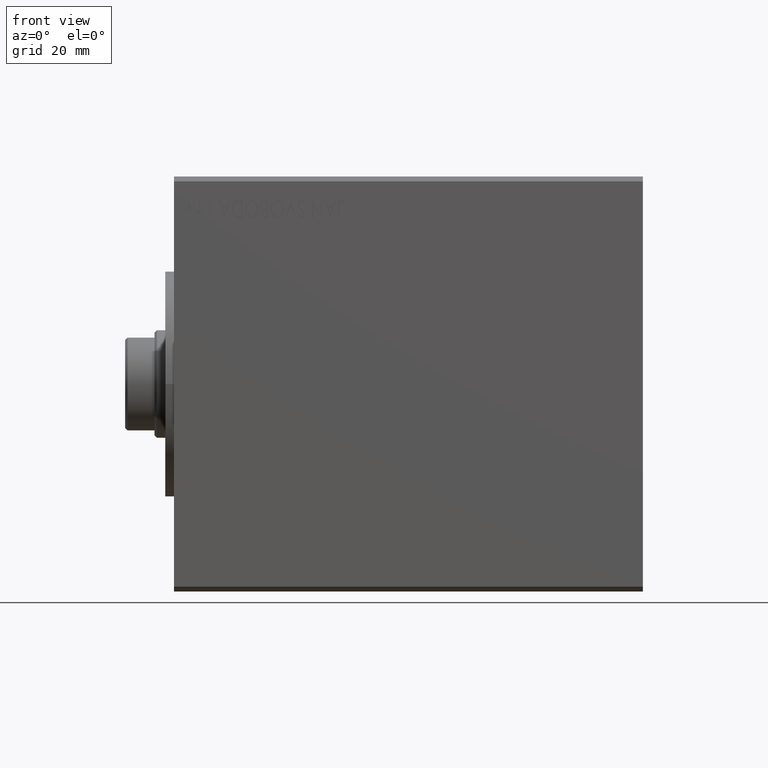
[diagram: clean part render]
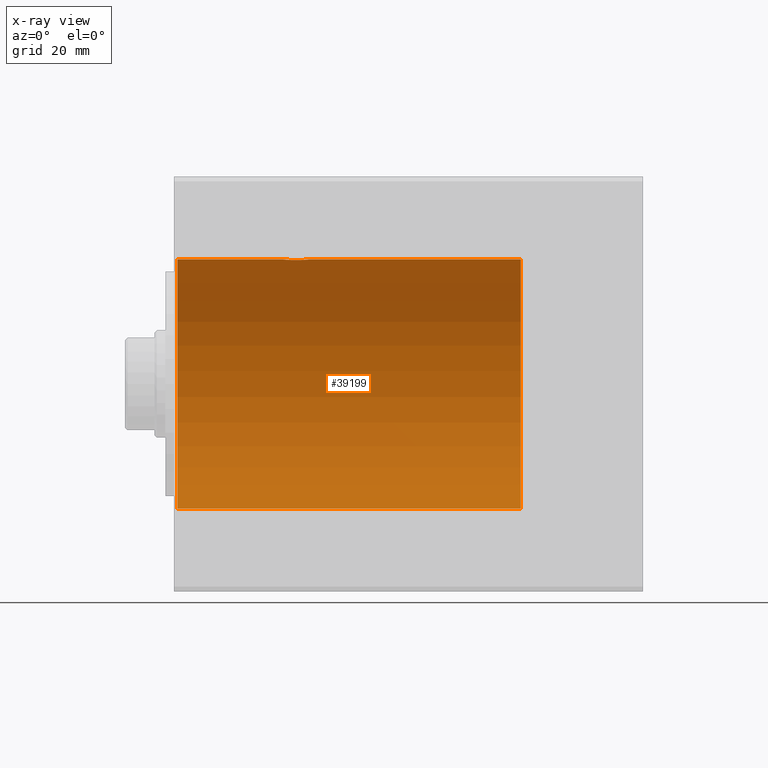
[diagram: x-ray — body ghosted, one internal face saturated and labeled with its STEP entity id]
A machine part, front view, then the same camera in x-ray: the body is ghosted and one INTERNAL B-rep face — a face not visible from any outside direction — is saturated and labeled: STEP entity #39199.
In plain terms, the highlighted cylindrical surface (partial cylindrical patch) has radius 25.5 mm, axis along (-1, -0, -0).
Its self-contained STEP definition (entity closure, byte-faithful):
#2025 = LINE ( 'NONE', #15599, #32934 ) ;
#2693 = EDGE_CURVE ( 'NONE', #31445, #7954, #7434, .T. ) ;
#2903 = CARTESIAN_POINT ( 'NONE',  ( 27.75000000000000355, 8.048106544984229456E-17, 25.50000000000000000 ) ) ;
#3223 = ORIENTED_EDGE ( 'NONE', *, *, #2693, .T. ) ;
#3994 = DIRECTION ( 'NONE',  ( -1.000000000000000000, 0.000000000000000000, 0.000000000000000000 ) ) ;
#4030 = LINE ( 'NONE', #21175, #30580 ) ;
#5899 = EDGE_CURVE ( 'NONE', #37983, #22426, #30774, .T. ) ;
#6022 = CARTESIAN_POINT ( 'NONE',  ( 24.28632799911198603, 2.661865185172593407, 25.36071218702769769 ) ) ;
#6245 = CARTESIAN_POINT ( 'NONE',  ( 25.18051211663669164, 2.749934396358983069, 25.35128913526986238 ) ) ;
#6299 = DIRECTION ( 'NONE',  ( -1.000000000000000000, 0.000000000000000000, 0.000000000000000000 ) ) ;
#6633 = EDGE_CURVE ( 'NONE', #30419, #7038, #43597, .T. ) ;
#6689 = CARTESIAN_POINT ( 'NONE',  ( 26.67899044711617762, 2.185448893543723958, 25.40637711736232518 ) ) ;
#6847 = CYLINDRICAL_SURFACE ( 'NONE', #9669, 25.50000000000000000 ) ;
#7038 = VERTEX_POINT ( 'NONE', #34174 ) ;
#7434 = B_SPLINE_CURVE_WITH_KNOTS ( 'NONE', 3,
 ( #2903, #37194, #26498, #13580, #12645, #23831, #27167, #40760, #9584, #36747, #6689, #43437, #36522, #13139, #29837, #33620, #6245, #19820, #16704, #6022, #33849, #19604, #12912, #33396, #16478, #30283, #43887, #13364, #26949, #40539, #29327, #32877, #12185, #32439 ),
 .UNSPECIFIED., .F., .F.,
 ( 4, 2, 2, 2, 2, 2, 2, 2, 2, 2, 2, 2, 2, 2, 2, 2, 4 ),
 ( 7.820387884921159682E-20, 0.0005377504153540451368, 0.001075500830708090057, 0.001613251246062135085, 0.002151001661416180114, 0.002688752076770225142, 0.003226502492124270170, 0.003764252907478314765, 0.004302003322832360227, 0.004839753738186405689, 0.005377504153540450284, 0.005915254568894494878, 0.006453004984248540341, 0.006990755399602586670, 0.007528505814956631265, 0.008066256230310677594, 0.008604006645664723923 ),
 .UNSPECIFIED. ) ;
#7954 = VERTEX_POINT ( 'NONE', #22501 ) ;
#8504 = EDGE_LOOP ( 'NONE', ( #13622, #18848, #40276, #3223, #42685, #16612 ) ) ;
#9584 = CARTESIAN_POINT ( 'NONE',  ( 27.07094674874814899, 1.818190416763847628, 25.43541506791175166 ) ) ;
#9669 = AXIS2_PLACEMENT_3D ( 'NONE', #36905, #13076, #27101 ) ;
#12031 = CARTESIAN_POINT ( 'NONE',  ( 0.7000000000000061728, 3.122849337825750222E-15, -25.50000000000000000 ) ) ;
#12185 = CARTESIAN_POINT ( 'NONE',  ( 22.25000000000001421, 0.1795439971740303842, 25.50000000000000711 ) ) ;
#12645 = CARTESIAN_POINT ( 'NONE',  ( 27.60924546800652024, 0.8870333714824095717, 25.48511214065471719 ) ) ;
#12753 = CARTESIAN_POINT ( 'NONE',  ( 71.00000000000000000, 0.000000000000000000, 0.000000000000000000 ) ) ;
#12912 = CARTESIAN_POINT ( 'NONE',  ( 23.62085709230549568, 2.385906103428721892, 25.38833271868618624 ) ) ;
#13076 = DIRECTION ( 'NONE',  ( -1.000000000000000000, -0.000000000000000000, -0.000000000000000000 ) ) ;
#13139 = CARTESIAN_POINT ( 'NONE',  ( 25.88758609357714491, 2.608978271227879731, 25.36627648877553654 ) ) ;
#13364 = CARTESIAN_POINT ( 'NONE',  ( 22.61454708910614997, 1.379923800465350681, 25.46307233195958020 ) ) ;
#13580 = CARTESIAN_POINT ( 'NONE',  ( 27.66219387477480041, 0.7122967098376464801, 25.49065645963403526 ) ) ;
#13622 = ORIENTED_EDGE ( 'NONE', *, *, #16477, .F. ) ;
#15599 = CARTESIAN_POINT ( 'NONE',  ( 71.00000000000000000, 0.000000000000000000, 25.50000000000000000 ) ) ;
#15768 = AXIS2_PLACEMENT_3D ( 'NONE', #12753, #6299, #43719 ) ;
#15835 = AXIS2_PLACEMENT_3D ( 'NONE', #23601, #3994, #16697 ) ;
#16477 = EDGE_CURVE ( 'NONE', #7038, #22426, #4030, .T. ) ;
#16478 = CARTESIAN_POINT ( 'NONE',  ( 23.18411208796796785, 2.073163292536371660, 25.41591161430256918 ) ) ;
#16612 = ORIENTED_EDGE ( 'NONE', *, *, #5899, .T. ) ;
#16618 = CARTESIAN_POINT ( 'NONE',  ( 71.00000000000000000, 0.000000000000000000, 25.50000000000000000 ) ) ;
#16697 = DIRECTION ( 'NONE',  ( 0.000000000000000000, 0.000000000000000000, -1.000000000000000000 ) ) ;
#16704 = CARTESIAN_POINT ( 'NONE',  ( 24.63913991527716263, 2.732148236853054080, 25.35323677381548890 ) ) ;
#18052 = DIRECTION ( 'NONE',  ( -1.000000000000000000, -0.000000000000000000, -0.000000000000000000 ) ) ;
#18848 = ORIENTED_EDGE ( 'NONE', *, *, #6633, .F. ) ;
#19103 = DIRECTION ( 'NONE',  ( -1.000000000000000000, -0.000000000000000000, -0.000000000000000000 ) ) ;
#19604 = CARTESIAN_POINT ( 'NONE',  ( 23.78171663419918147, 2.471999237561344653, 25.37999251845405624 ) ) ;
#19820 = CARTESIAN_POINT ( 'NONE',  ( 24.82149231634158326, 2.750065238390865474, 25.35127494207982224 ) ) ;
#20415 = VECTOR ( 'NONE', #19103, 1000.000000000000000 ) ;
#21175 = CARTESIAN_POINT ( 'NONE',  ( 71.00000000000000000, 3.122849337825750222E-15, -25.50000000000000000 ) ) ;
#22426 = VERTEX_POINT ( 'NONE', #12031 ) ;
#22443 = LINE ( 'NONE', #32247, #20415 ) ;
#22501 = CARTESIAN_POINT ( 'NONE',  ( 22.25000000000000000, -2.520213376954827465E-23, 25.50000000000000000 ) ) ;
#23601 = CARTESIAN_POINT ( 'NONE',  ( 0.7000000000000061728, 0.000000000000000000, 0.000000000000000000 ) ) ;
#23831 = CARTESIAN_POINT ( 'NONE',  ( 27.47113695655389520, 1.220029612915042305, 25.47134265733710023 ) ) ;
#26274 = DIRECTION ( 'NONE',  ( -1.000000000000000000, -0.000000000000000000, -0.000000000000000000 ) ) ;
#26372 = CARTESIAN_POINT ( 'NONE',  ( 27.75000000000000355, 8.048106544984229456E-17, 25.50000000000000000 ) ) ;
#26483 = CARTESIAN_POINT ( 'NONE',  ( 0.7000000000000061728, 0.000000000000000000, 25.50000000000000000 ) ) ;
#26498 = CARTESIAN_POINT ( 'NONE',  ( 27.73214168976365102, 0.3606169945932549692, 25.49805656769039430 ) ) ;
#26949 = CARTESIAN_POINT ( 'NONE',  ( 22.52839946558070494, 1.219090660012199789, 25.47138780348912235 ) ) ;
#27101 = DIRECTION ( 'NONE',  ( 0.000000000000000000, 0.000000000000000000, 1.000000000000000000 ) ) ;
#27125 = EDGE_CURVE ( 'NONE', #7954, #37983, #2025, .T. ) ;
#27167 = CARTESIAN_POINT ( 'NONE',  ( 27.38664218485787671, 1.377943378715643430, 25.46318285139502180 ) ) ;
#29327 = CARTESIAN_POINT ( 'NONE',  ( 22.33838551574566011, 0.7145913488848059103, 25.49059565528228433 ) ) ;
#29837 = CARTESIAN_POINT ( 'NONE',  ( 25.71412694923393261, 2.661820881908843361, 25.36071708903062571 ) ) ;
#30283 = CARTESIAN_POINT ( 'NONE',  ( 22.92734681539844743, 1.816470127182206795, 25.43554610187512921 ) ) ;
#30419 = VERTEX_POINT ( 'NONE', #16618 ) ;
#30580 = VECTOR ( 'NONE', #18052, 1000.000000000000000 ) ;
#30774 = CIRCLE ( 'NONE', #15835, 25.50000000000000000 ) ;
#31445 = VERTEX_POINT ( 'NONE', #26372 ) ;
#32247 = CARTESIAN_POINT ( 'NONE',  ( 71.00000000000000000, 0.000000000000000000, 25.50000000000000000 ) ) ;
#32439 = CARTESIAN_POINT ( 'NONE',  ( 22.25000000000000000, -2.520213376954827465E-23, 25.50000000000000000 ) ) ;
#32877 = CARTESIAN_POINT ( 'NONE',  ( 22.26799626100015672, 0.3619226834345124488, 25.49804148612619059 ) ) ;
#32934 = VECTOR ( 'NONE', #26274, 1000.000000000000000 ) ;
#33396 = CARTESIAN_POINT ( 'NONE',  ( 23.32301682331572579, 2.186849450543041140, 25.40625268806380888 ) ) ;
#33620 = CARTESIAN_POINT ( 'NONE',  ( 25.35904867845211186, 2.732462580437269306, 25.35320314918266149 ) ) ;
#33849 = CARTESIAN_POINT ( 'NONE',  ( 24.11483395142550279, 2.609880391194553617, 25.36618467193965998 ) ) ;
#34174 = CARTESIAN_POINT ( 'NONE',  ( 71.00000000000000000, 3.122849337825750222E-15, -25.50000000000000000 ) ) ;
#36522 = CARTESIAN_POINT ( 'NONE',  ( 26.21848376133624114, 2.471815935018347510, 25.38000938747137170 ) ) ;
#36747 = CARTESIAN_POINT ( 'NONE',  ( 26.81737431410829586, 2.071662962496991334, 25.41602582305861446 ) ) ;
#36905 = CARTESIAN_POINT ( 'NONE',  ( 71.00000000000000000, 0.000000000000000000, 0.000000000000000000 ) ) ;
#37194 = CARTESIAN_POINT ( 'NONE',  ( 27.75000000000000355, 0.1818411675653318349, 25.49999999999999645 ) ) ;
#37983 = VERTEX_POINT ( 'NONE', #26483 ) ;
#39199 = ADVANCED_FACE ( 'NONE', ( #43370 ), #6847, .F. ) ;
#40276 = ORIENTED_EDGE ( 'NONE', *, *, #40969, .T. ) ;
#40539 = CARTESIAN_POINT ( 'NONE',  ( 22.39041548042342811, 0.8860360456872166113, 25.48514702329194392 ) ) ;
#40760 = CARTESIAN_POINT ( 'NONE',  ( 27.18703867904413229, 1.676797748643024999, 25.44525020880457689 ) ) ;
#40969 = EDGE_CURVE ( 'NONE', #30419, #31445, #22443, .T. ) ;
#42685 = ORIENTED_EDGE ( 'NONE', *, *, #27125, .T. ) ;
#43370 = FACE_OUTER_BOUND ( 'NONE', #8504, .T. ) ;
#43437 = CARTESIAN_POINT ( 'NONE',  ( 26.37837412836197970, 2.386478692563842152, 25.38828281995184000 ) ) ;
#43597 = CIRCLE ( 'NONE', #15768, 25.50000000000000000 ) ;
#43719 = DIRECTION ( 'NONE',  ( 0.000000000000000000, 0.000000000000000000, 1.000000000000000000 ) ) ;
#43887 = CARTESIAN_POINT ( 'NONE',  ( 22.81367472156660625, 1.677664168439503944, 25.44518982471208091 ) ) ;